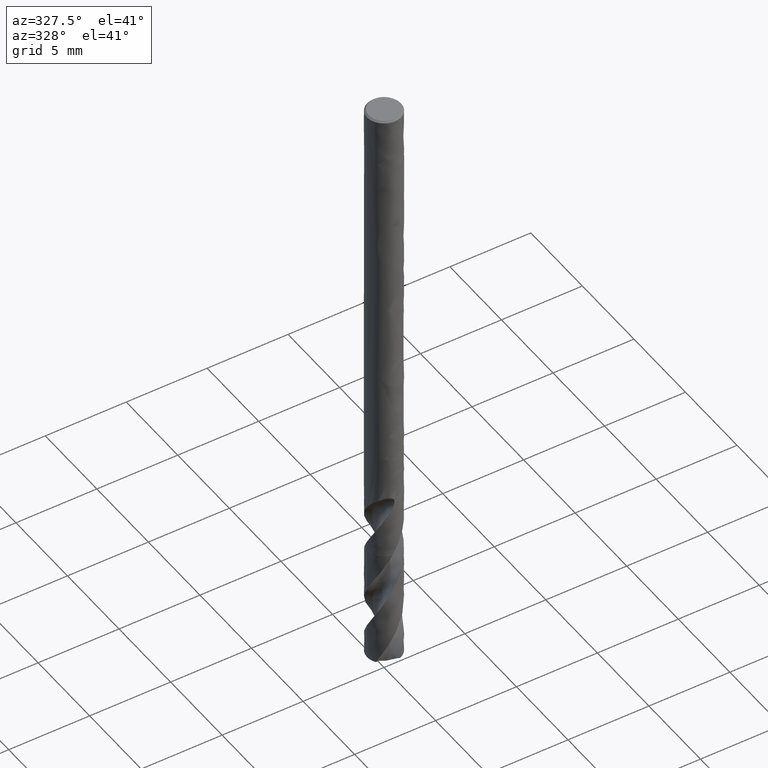
[diagram: clean part render]
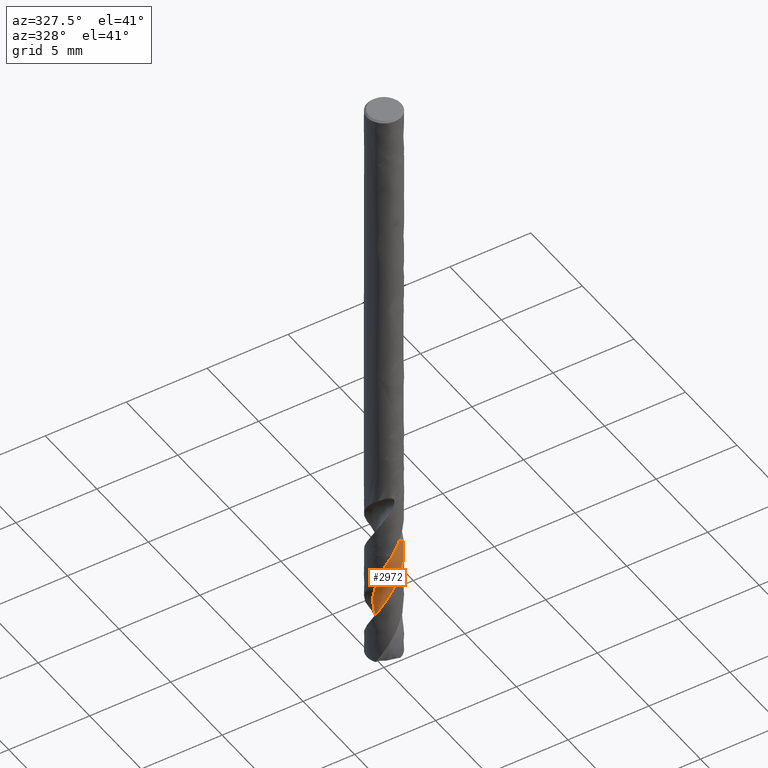
[diagram: same view with one face highlighted and labeled with its STEP entity id]
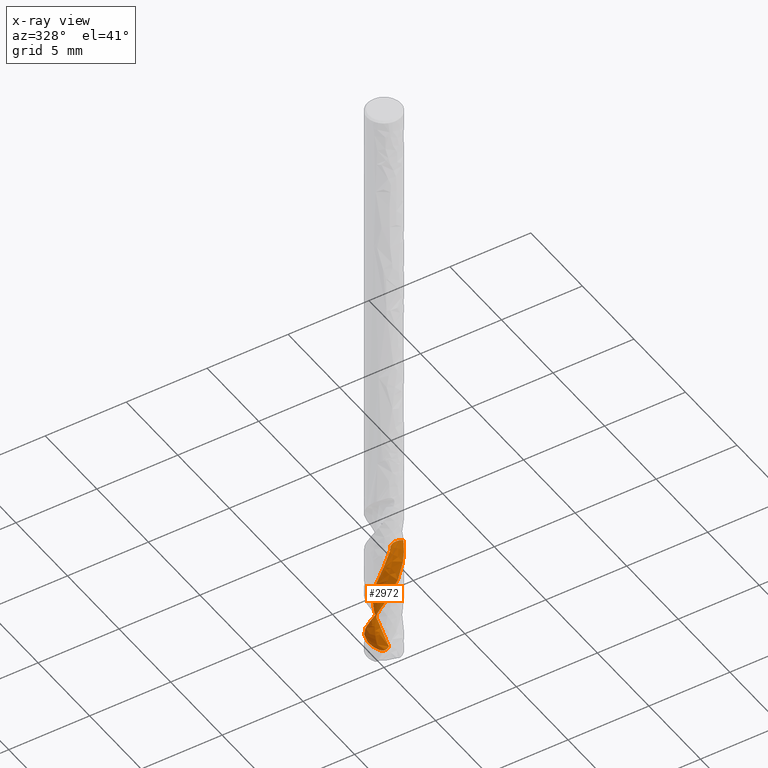
[diagram: x-ray of the same camera — body ghosted, the highlighted face saturated]
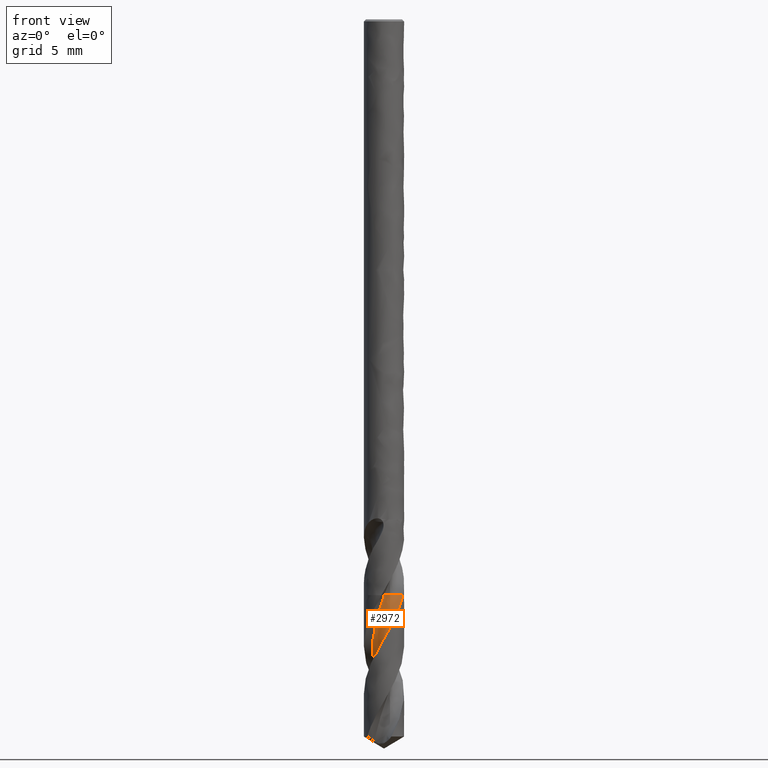
[diagram: same view with one face highlighted and labeled with its STEP entity id]
A machine part, auxiliary view. The second image highlights one B-rep face of the part: STEP entity #2972.
The next image is the same camera in x-ray: the body ghosted, the highlighted face saturated — about 0% of this face is hidden behind the body in this view.
A second angle (front view) of the same face is appended — the face is thin or edge-on in the first view.
In plain terms, the highlighted face is a freeform B-spline surface patch.
Its self-contained STEP definition (entity closure, byte-faithful):
#1627 = VERTEX_POINT('', #1628);
#1628 = CARTESIAN_POINT('', (0.00812829736750632, -0.62197046309725, -30.));
#1634 = EDGE_CURVE('', #1627, #1635, #1637, .T.);
#1635 = VERTEX_POINT('', #1636);
#1636 = CARTESIAN_POINT('', (0.989390204592491, -0.338738397540219, -30.));
#1637 = B_SPLINE_CURVE_WITH_KNOTS('', 3, (#1638, #1639, #1640, #1641, #1642, #1643, #1644, #1645, #1646, #1647, #1648, #1649, #1650, #1651, #1652, #1653, #1654, #1655, #1656, #1657, #1658, #1659, #1660, #1661, #1662, #1663, #1664, #1665, #1666, #1667, #1668, #1669, #1670, #1671, #1672, #1673, #1674, #1675, #1676, #1677, #1678, #1679, #1680, #1681, #1682, #1683), .UNSPECIFIED., .F., .U., (4, 3, 3, 3, 3, 3, 3, 3, 3, 3, 3, 3, 3, 3, 3, 4), (0., 0.0883401907301089, 0.176447770333646, 0.264331218393826, 0.351996399852826, 0.439446834063498, 0.52668385625376, 0.584820149875085, 0.610738380480792, 0.699044365433473, 0.787119138271106, 0.874970779840194, 0.962604802702614, 1.05002440330233, 1.13723060942003, 1.19592757691678), .UNSPECIFIED.);
#1638 = CARTESIAN_POINT('', (0.00812829736750601, -0.621970463097248, -30.));
#1639 = CARTESIAN_POINT('', (0.0176664654834315, -0.594111294570206, -30.));
#1640 = CARTESIAN_POINT('', (0.0292123244834765, -0.566861669460074, -30.));
#1641 = CARTESIAN_POINT('', (0.0425926385168949, -0.540630445348476, -30.));
#1642 = CARTESIAN_POINT('', (0.0559377204561162, -0.514468291436314, -30.));
#1643 = CARTESIAN_POINT('', (0.0711740399842842, -0.48918882880525, -30.));
#1644 = CARTESIAN_POINT('', (0.0880741868528203, -0.465169367006323, -30.));
#1645 = CARTESIAN_POINT('', (0.104931342459791, -0.441211006863665, -30.));
#1646 = CARTESIAN_POINT('', (0.123527374527527, -0.418387474144312, -30.));
#1647 = CARTESIAN_POINT('', (0.143586132381245, -0.397037697816471, -30.));
#1648 = CARTESIAN_POINT('', (0.163595072470671, -0.375740945615674, -30.));
#1649 = CARTESIAN_POINT('', (0.18515811865467, -0.355805578966728, -30.));
#1650 = CARTESIAN_POINT('', (0.207956642869816, -0.337526174397218, -30.));
#1651 = CARTESIAN_POINT('', (0.230699319138722, -0.319291547603412, -30.));
#1652 = CARTESIAN_POINT('', (0.254783003573362, -0.30261525714233, -30.));
#1653 = CARTESIAN_POINT('', (0.279853556688851, -0.287742520182874, -30.));
#1654 = CARTESIAN_POINT('', (0.304862928205397, -0.272906078307282, -30.));
#1655 = CARTESIAN_POINT('', (0.330976466204993, -0.259791901975455, -30.));
#1656 = CARTESIAN_POINT('', (0.357812048160874, -0.248591892499135, -30.));
#1657 = CARTESIAN_POINT('', (0.375695754331903, -0.241128008208622, -30.));
#1658 = CARTESIAN_POINT('', (0.393947655706699, -0.234491724544059, -30.));
#1659 = CARTESIAN_POINT('', (0.412448896149057, -0.228726256895383, -30.));
#1660 = CARTESIAN_POINT('', (0.420697089943454, -0.226155905213842, -30.));
#1661 = CARTESIAN_POINT('', (0.429000520278856, -0.22375653399112, -30.));
#1662 = CARTESIAN_POINT('', (0.437348426126049, -0.221531252749761, -30.));
#1663 = CARTESIAN_POINT('', (0.465790570165242, -0.213949498624474, -30.));
#1664 = CARTESIAN_POINT('', (0.494843464924716, -0.208373360789007, -30.));
#1665 = CARTESIAN_POINT('', (0.524071532533717, -0.204886439940146, -30.));
#1666 = CARTESIAN_POINT('', (0.553223072109718, -0.201408648918044, -30.));
#1667 = CARTESIAN_POINT('', (0.582693973668915, -0.199991782738159, -30.));
#1668 = CARTESIAN_POINT('', (0.612044694472524, -0.200656973201971, -30.));
#1669 = CARTESIAN_POINT('', (0.641321057280595, -0.201320478452331, -30.));
#1670 = CARTESIAN_POINT('', (0.670622840914181, -0.204058738032071, -30.));
#1671 = CARTESIAN_POINT('', (0.699515228256855, -0.208831118164447, -30.));
#1672 = CARTESIAN_POINT('', (0.72833604580466, -0.213591676557655, -30.));
#1673 = CARTESIAN_POINT('', (0.756891529550386, -0.2203997005449, -30.));
#1674 = CARTESIAN_POINT('', (0.784760025909286, -0.22915466205441, -30.));
#1675 = CARTESIAN_POINT('', (0.812560333842592, -0.237888201990477, -30.));
#1676 = CARTESIAN_POINT('', (0.839813357230459, -0.248601944941349, -30.));
#1677 = CARTESIAN_POINT('', (0.86611863442296, -0.261138460917775, -30.));
#1678 = CARTESIAN_POINT('', (0.89235969945981, -0.273644374794506, -30.));
#1679 = CARTESIAN_POINT('', (0.91778571903291, -0.288025159349682, -30.));
#1680 = CARTESIAN_POINT('', (0.942024893006842, -0.304070526943534, -30.));
#1681 = CARTESIAN_POINT('', (0.958339855785701, -0.314870382390272, -30.));
#1682 = CARTESIAN_POINT('', (0.974163304934627, -0.32645196539108, -30.));
#1683 = CARTESIAN_POINT('', (0.98939020459249, -0.338738397540218, -30.));
#2809 = EDGE_CURVE('', #2810, #1635, #2812, .T.);
#2810 = VERTEX_POINT('', #2811);
#2811 = CARTESIAN_POINT('', (-0.414746518956945, 0.964616672576782, -37.3041250124936));
#2812 = (
   BOUNDED_CURVE ()
   B_SPLINE_CURVE (3, (#2813, #2814, #2815, #2816, #2817, #2818, #2819, #2820, #2821, #2822, #2823, #2824, #2825, #2826, #2827, #2828, #2829, #2830, #2831, #2832, #2833, #2834, #2835, #2836, #2837, #2838, #2839, #2840, #2841, #2842, #2843, #2844, #2845, #2846, #2847, #2848, #2849, #2850, #2851, #2852, #2853, #2854), .UNSPECIFIED., .F., .U.)
   B_SPLINE_CURVE_WITH_KNOTS ((4, 1, 1, 1, 1, 1, 1, 1, 1, 1, 1, 1, 1, 1, 1, 1, 1, 1, 1, 1, 1, 1, 1, 1, 1, 1, 1, 1, 1, 1, 1, 1, 1, 1, 1, 1, 1, 1, 1, 4), (0.745874987506442, 0.77741935483871, 0.971774193548387, 1.16612903225806, 1.36048387096774, 1.55483870967742, 1.7491935483871, 1.94354838709677, 2.13790322580645, 2.33225806451613, 2.52661290322581, 2.72096774193548, 2.91532258064516, 3.10967741935484, 3.30403225806452, 3.49838709677419, 3.69274193548387, 3.88709677419355, 4.08145161290323, 4.2758064516129, 4.47016129032258, 4.66451612903226, 4.85887096774194, 5.05322580645161, 5.24758064516129, 5.44193548387097, 5.63629032258065, 5.83064516129032, 6.025, 6.21935483870968, 6.41370967741936, 6.60806451612903, 6.80241935483871, 6.99677419354839, 7.19112903225806, 7.38548387096774, 7.57983870967742, 7.7741935483871, 7.96854838709677, 8.05), .UNSPECIFIED.)
   CURVE ()
   GEOMETRIC_REPRESENTATION_ITEM ()
   RATIONAL_B_SPLINE_CURVE ((1., 1., 1., 1., 1., 1., 1., 1., 1., 1., 1., 1., 1., 1., 1., 1., 1., 1., 1., 1., 1., 1., 1., 1., 1., 1., 1., 1., 1., 1., 1., 1., 1., 1., 1., 1., 1., 1., 1., 1., 1., 1.))
   REPRESENTATION_ITEM ('')
);
#2813 = CARTESIAN_POINT('', (-0.41474651895696, 0.964616672576775, -37.3041250124936));
#2814 = CARTESIAN_POINT('', (-0.420215114117453, 0.962118653907865, -37.2936102233828));
#2815 = CARTESIAN_POINT('', (-0.459217766386062, 0.943900164336586, -37.2183104880355));
#2816 = CARTESIAN_POINT('', (-0.529574978386442, 0.905653830516715, -37.0782258064516));
#2817 = CARTESIAN_POINT('', (-0.620901534711613, 0.84282100320937, -36.8838709677419));
#2818 = CARTESIAN_POINT('', (-0.704980513974399, 0.770941911183176, -36.6895161290323));
#2819 = CARTESIAN_POINT('', (-0.780933186865598, 0.690832317498947, -36.4951612903226));
#2820 = CARTESIAN_POINT('', (-0.847970582937893, 0.603391429389029, -36.3008064516129));
#2821 = CARTESIAN_POINT('', (-0.905401230281192, 0.509592288943731, -36.1064516129032));
#2822 = CARTESIAN_POINT('', (-0.952637861196604, 0.410471398980585, -35.9120967741936));
#2823 = CARTESIAN_POINT('', (-0.989203044485623, 0.307117780833931, -35.7177419354839));
#2824 = CARTESIAN_POINT('', (-1.01473369007466, 0.200661548959801, -35.5233870967742));
#2825 = CARTESIAN_POINT('', (-1.02898438934024, 0.0922621222778734, -35.3290322580645));
#2826 = CARTESIAN_POINT('', (-1.03182956377424, -0.0169038134656448, -35.1346774193548));
#2827 = CARTESIAN_POINT('', (-1.02326440637361, -0.12565447410148, -34.9403225806452));
#2828 = CARTESIAN_POINT('', (-1.00340461132918, -0.23281515796574, -34.7459677419355));
#2829 = CARTESIAN_POINT('', (-0.972484898913985, -0.337230321372446, -34.5516129032258));
#2830 = CARTESIAN_POINT('', (-0.930856353630322, -0.437775432153699, -34.3572580645161));
#2831 = CARTESIAN_POINT('', (-0.878982604630458, -0.533368487261044, -34.1629032258065));
#2832 = CARTESIAN_POINT('', (-0.817434888076039, -0.622981083899905, -33.9685483870968));
#2833 = CARTESIAN_POINT('', (-0.746886041363156, -0.705648938102881, -33.7741935483871));
#2834 = CARTESIAN_POINT('', (-0.668103488930987, -0.780481750001658, -33.5798387096774));
#2835 = CARTESIAN_POINT('', (-0.581941288613748, -0.846672321282476, -33.3854838709677));
#2836 = CARTESIAN_POINT('', (-0.489331316114671, -0.903504837353683, -33.1911290322581));
#2837 = CARTESIAN_POINT('', (-0.391273673107693, -0.950362234556304, -32.9967741935484));
#2838 = CARTESIAN_POINT('', (-0.288826411643974, -0.986732581245565, -32.8024193548387));
#2839 = CARTESIAN_POINT('', (-0.18309467389795, -1.01221441069289, -32.608064516129));
#2840 = CARTESIAN_POINT('', (-0.075219351779246, -1.02652095343032, -32.4137096774194));
#2841 = CARTESIAN_POINT('', (0.0336346244834257, -1.02948322680406, -32.2193548387097));
#2842 = CARTESIAN_POINT('', (0.142290256052086, -1.02105195003878, -32.025));
#2843 = CARTESIAN_POINT('', (0.249570588103147, -1.00129826395557, -31.8306451612903));
#2844 = CARTESIAN_POINT('', (0.354310848353021, -0.970413245542474, -31.6362903225806));
#2845 = CARTESIAN_POINT('', (0.455370493853069, -0.928706218769424, -31.441935483871));
#2846 = CARTESIAN_POINT('', (0.551645048898602, -0.876601874235252, -31.2475806451613));
#2847 = CARTESIAN_POINT('', (0.642077618190537, -0.814636221496977, -31.0532258064516));
#2848 = CARTESIAN_POINT('', (0.72566996255584, -0.743451408585143, -30.8588709677419));
#2849 = CARTESIAN_POINT('', (0.801493025597867, -0.663789455334784, -30.6645161290323));
#2850 = CARTESIAN_POINT('', (0.86869681338132, -0.576484952553304, -30.4701612903226));
#2851 = CARTESIAN_POINT('', (0.926519500425906, -0.482456807895689, -30.2758064516129));
#2852 = CARTESIAN_POINT('', (0.965044486718553, -0.402015911788151, -30.1190860215054));
#2853 = CARTESIAN_POINT('', (0.984083598341404, -0.353260094962425, -30.0271505376344));
#2854 = CARTESIAN_POINT('', (0.989390204592491, -0.338738397540219, -30.));
#2972 = ADVANCED_FACE('', (#2973), #3119, .T.);
#2973 = FACE_OUTER_BOUND('', #2974, .T.);
#2974 = EDGE_LOOP('', (#2975, #2976, #3024, #3111, #3118));
#2975 = ORIENTED_EDGE('', *, *, #1634, .F.);
#2976 = ORIENTED_EDGE('', *, *, #2977, .F.);
#2977 = EDGE_CURVE('', #2978, #1627, #2980, .T.);
#2978 = VERTEX_POINT('', #2979);
#2979 = CARTESIAN_POINT('', (0.526142050315062, 0.34117120844056, -37.6232152339215));
#2980 = B_SPLINE_CURVE_WITH_KNOTS('', 3, (#2981, #2982, #2983, #2984, #2985, #2986, #2987, #2988, #2989, #2990, #2991, #2992, #2993, #2994, #2995, #2996, #2997, #2998, #2999, #3000, #3001, #3002, #3003, #3004, #3005, #3006, #3007, #3008, #3009, #3010, #3011, #3012, #3013, #3014, #3015, #3016, #3017, #3018, #3019, #3020, #3021, #3022, #3023), .UNSPECIFIED., .F., .U., (4, 1, 1, 1, 1, 1, 1, 1, 1, 1, 1, 1, 1, 1, 1, 1, 1, 1, 1, 1, 1, 1, 1, 1, 1, 1, 1, 1, 1, 1, 1, 1, 1, 1, 1, 1, 1, 1, 1, 1, 4), (0.426784766078523, 0.583064516129032, 0.77741935483871, 0.971774193548387, 1.16612903225806, 1.36048387096774, 1.55483870967742, 1.7491935483871, 1.94354838709677, 2.13790322580645, 2.33225806451613, 2.52661290322581, 2.72096774193548, 2.91532258064516, 3.10967741935484, 3.30403225806452, 3.49838709677419, 3.69274193548387, 3.88709677419355, 4.08145161290323, 4.2758064516129, 4.47016129032258, 4.66451612903226, 4.85887096774194, 5.05322580645161, 5.24758064516129, 5.44193548387097, 5.63629032258065, 5.83064516129032, 6.025, 6.21935483870968, 6.41370967741936, 6.60806451612903, 6.80241935483871, 6.99677419354839, 7.19112903225806, 7.38548387096774, 7.57983870967742, 7.7741935483871, 7.96854838709677, 8.05), .UNSPECIFIED.);
#2981 = CARTESIAN_POINT('', (0.526142050315062, 0.341171208440561, -37.6232152339215));
#2982 = CARTESIAN_POINT('', (0.516105033938284, 0.35585841269883, -37.5711219839046));
#2983 = CARTESIAN_POINT('', (0.492220866732757, 0.38782822670992, -37.4542437876512));
#2984 = CARTESIAN_POINT('', (0.45064864692343, 0.433713145349977, -37.2725806451613));
#2985 = CARTESIAN_POINT('', (0.401401515631753, 0.47778067963409, -37.0782258064516));
#2986 = CARTESIAN_POINT('', (0.347939388904613, 0.516372148714715, -36.8838709677419));
#2987 = CARTESIAN_POINT('', (0.290859367390927, 0.549094518377301, -36.6895161290323));
#2988 = CARTESIAN_POINT('', (0.230794159708197, 0.57561870692493, -36.4951612903226));
#2989 = CARTESIAN_POINT('', (0.168405265291884, 0.595682601360364, -36.3008064516129));
#2990 = CARTESIAN_POINT('', (0.104376043649314, 0.609093471026537, -36.1064516129032));
#2991 = CARTESIAN_POINT('', (0.039404561989231, 0.615729649071189, -35.9120967741936));
#2992 = CARTESIAN_POINT('', (-0.0258036606906008, 0.61554149902185, -35.7177419354839));
#2993 = CARTESIAN_POINT('', (-0.0905429546465419, 0.608551653044469, -35.5233870967742));
#2994 = CARTESIAN_POINT('', (-0.154114771059895, 0.594854525348498, -35.3290322580645));
#2995 = CARTESIAN_POINT('', (-0.215834854845357, 0.574615108268759, -35.1346774193548));
#2996 = CARTESIAN_POINT('', (-0.27504024925523, 0.548067065919296, -34.9403225806452));
#2997 = CARTESIAN_POINT('', (-0.331096065159513, 0.515510146588513, -34.7459677419355));
#2998 = CARTESIAN_POINT('', (-0.383401950293094, 0.477306941337256, -34.5516129032258));
#2999 = CARTESIAN_POINT('', (-0.431398196835692, 0.433879022211146, -34.3572580645161));
#3000 = CARTESIAN_POINT('', (-0.474571429265047, 0.385702499121754, -34.1629032258065));
#3001 = CARTESIAN_POINT('', (-0.512459818502224, 0.333303039721183, -33.9685483870968));
#3002 = CARTESIAN_POINT('', (-0.544657772904084, 0.277250401456298, -33.7741935483871));
#3003 = CARTESIAN_POINT('', (-0.570820061615212, 0.218152529402618, -33.5798387096774));
#3004 = CARTESIAN_POINT('', (-0.590665331127154, 0.156649277409762, -33.3854838709677));
#3005 = CARTESIAN_POINT('', (-0.603978981562124, 0.0934058135097222, -33.1911290322581));
#3006 = CARTESIAN_POINT('', (-0.610615375154459, 0.0291057734191477, -32.9967741935484));
#3007 = CARTESIAN_POINT('', (-0.610499355597011, -0.0355557717153742, -32.8024193548387));
#3008 = CARTESIAN_POINT('', (-0.603627063300917, -0.0998794654430609, -32.608064516129));
#3009 = CARTESIAN_POINT('', (-0.590066038133553, -0.163168864978001, -32.4137096774193));
#3010 = CARTESIAN_POINT('', (-0.569954607798243, -0.224737619447328, -32.2193548387097));
#3011 = CARTESIAN_POINT('', (-0.543500566646285, -0.283916557928922, -32.025));
#3012 = CARTESIAN_POINT('', (-0.51097915631376, -0.340060618475316, -31.8306451612903));
#3013 = CARTESIAN_POINT('', (-0.472730366095309, -0.392555550617503, -31.6362903225806));
#3014 = CARTESIAN_POINT('', (-0.429155577361057, -0.440824325733241, -31.441935483871));
#3015 = CARTESIAN_POINT('', (-0.380713582498908, -0.484333192170941, -31.2475806451613));
#3016 = CARTESIAN_POINT('', (-0.32791601491458, -0.522597314997594, -31.0532258064516));
#3017 = CARTESIAN_POINT('', (-0.271322231955988, -0.555185944144193, -30.8588709677419));
#3018 = CARTESIAN_POINT('', (-0.211533699208055, -0.581727057743863, -30.6645161290323));
#3019 = CARTESIAN_POINT('', (-0.149187924877569, -0.601911436229342, -30.4701612903226));
#3020 = CARTESIAN_POINT('', (-0.0849520149141438, -0.615496112376348, -30.2758064516129));
#3021 = CARTESIAN_POINT('', (-0.0321867601877411, -0.62098832180407, -30.1190860215054));
#3022 = CARTESIAN_POINT('', (-0.00106758548481457, -0.621902222022233, -30.0271505376344));
#3023 = CARTESIAN_POINT('', (0.00812829736750632, -0.62197046309725, -30.));
#3024 = ORIENTED_EDGE('', *, *, #3025, .T.);
#3025 = EDGE_CURVE('', #2978, #3026, #3028, .T.);
#3026 = VERTEX_POINT('', #3027);
#3027 = CARTESIAN_POINT('', (-0.380658873556618, 0.978569783910484, -37.3690963500211));
#3028 = B_SPLINE_CURVE_WITH_KNOTS('', 3, (#3029, #3030, #3031, #3032, #3033, #3034, #3035, #3036, #3037, #3038, #3039, #3040, #3041, #3042, #3043, #3044, #3045, #3046, #3047, #3048, #3049, #3050, #3051, #3052, #3053, #3054, #3055, #3056, #3057, #3058, #3059, #3060, #3061, #3062, #3063, #3064, #3065, #3066, #3067, #3068, #3069, #3070, #3071, #3072, #3073, #3074, #3075, #3076, #3077, #3078, #3079, #3080, #3081, #3082, #3083, #3084, #3085, #3086, #3087, #3088, #3089, #3090, #3091, #3092, #3093, #3094, #3095, #3096, #3097, #3098, #3099, #3100, #3101, #3102, #3103, #3104, #3105, #3106, #3107, #3108, #3109, #3110), .UNSPECIFIED., .F., .U., (4, 3, 3, 3, 3, 3, 3, 3, 3, 3, 3, 3, 3, 3, 3, 3, 3, 3, 3, 3, 3, 3, 3, 3, 3, 3, 3, 4), (0., 0.0584200043990706, 0.116781054589472, 0.175027823026521, 0.2138033855006, 0.252516026943997, 0.291170928282461, 0.329791560745905, 0.368418101904684, 0.407092936271379, 0.445840872019871, 0.484660773334096, 0.52353348383714, 0.562435050360689, 0.601345207776891, 0.618657088241367, 0.636006007363751, 0.695207347077198, 0.754146322578821, 0.812888178564507, 0.871479250392525, 0.929951423746157, 0.98832638665493, 1.0466187415727, 1.13380968116754, 1.22078361959114, 1.30755334033018, 1.33799535496574), .UNSPECIFIED.);
#3029 = CARTESIAN_POINT('', (0.526142050315062, 0.341171208440561, -37.6232152339215));
#3030 = CARTESIAN_POINT('', (0.51087307926239, 0.334301413507831, -37.6331588353212));
#3031 = CARTESIAN_POINT('', (0.495093548102803, 0.328382703502582, -37.6430425673347));
#3032 = CARTESIAN_POINT('', (0.478911309171094, 0.323535212777621, -37.6527300719179));
#3033 = CARTESIAN_POINT('', (0.462745400451965, 0.318692613869816, -37.662407800412));
#3034 = CARTESIAN_POINT('', (0.446119601572104, 0.314902655981584, -37.6719253372805));
#3035 = CARTESIAN_POINT('', (0.429162279095745, 0.312279761711153, -37.6810913308318));
#3036 = CARTESIAN_POINT('', (0.412238162199794, 0.30966200355385, -37.6902393756688));
#3037 = CARTESIAN_POINT('', (0.394911217867676, 0.308197527528548, -37.699076872948));
#3038 = CARTESIAN_POINT('', (0.377341857025813, 0.307981549202978, -37.707337383089));
#3039 = CARTESIAN_POINT('', (0.365645725768513, 0.30783776987786, -37.7128365023643));
#3040 = CARTESIAN_POINT('', (0.353810186951692, 0.308246089783431, -37.7180936854078));
#3041 = CARTESIAN_POINT('', (0.341896179772469, 0.309222916844781, -37.7230092437191));
#3042 = CARTESIAN_POINT('', (0.330001505429791, 0.310198158810737, -37.7279168255635));
#3043 = CARTESIAN_POINT('', (0.317996696079642, 0.311743407683622, -37.7324962449879));
#3044 = CARTESIAN_POINT('', (0.305958642164865, 0.313856657938524, -37.7366360717324));
#3045 = CARTESIAN_POINT('', (0.293938543069761, 0.315966756269741, -37.7407697239039));
#3046 = CARTESIAN_POINT('', (0.281848344763279, 0.318650423507471, -37.7444763222319));
#3047 = CARTESIAN_POINT('', (0.269783619270303, 0.321877004839789, -37.7476471185331));
#3048 = CARTESIAN_POINT('', (0.25772958956378, 0.325100725698827, -37.7508151038163));
#3049 = CARTESIAN_POINT('', (0.245660124115528, 0.328877743919432, -37.7534571829927));
#3050 = CARTESIAN_POINT('', (0.23368486114121, 0.333141733805272, -37.7554917851766));
#3051 = CARTESIAN_POINT('', (0.221707766032721, 0.3374063760527, -37.7575266986409));
#3052 = CARTESIAN_POINT('', (0.20978286784616, 0.342172727158666, -37.7589600072923));
#3053 = CARTESIAN_POINT('', (0.198018474664818, 0.347343302925342, -37.7597619130594));
#3054 = CARTESIAN_POINT('', (0.186239372936739, 0.352520343254545, -37.760564821417));
#3055 = CARTESIAN_POINT('', (0.174581632927973, 0.358118863306336, -37.7607379648251));
#3056 = CARTESIAN_POINT('', (0.163132321927408, 0.364028560025072, -37.7603108720645));
#3057 = CARTESIAN_POINT('', (0.151661369969139, 0.369949426979007, -37.759882972033));
#3058 = CARTESIAN_POINT('', (0.140365940219261, 0.376198748135999, -37.7588531192033));
#3059 = CARTESIAN_POINT('', (0.12930039963856, 0.382675433961072, -37.7572946407363));
#3060 = CARTESIAN_POINT('', (0.118214307307873, 0.389164148771702, -37.7557332677464));
#3061 = CARTESIAN_POINT('', (0.107333010358421, 0.395895370840207, -37.7536396020892));
#3062 = CARTESIAN_POINT('', (0.0966804604428747, 0.402790411521264, -37.7511049733245));
#3063 = CARTESIAN_POINT('', (0.0860134191839491, 0.409694831966125, -37.7485668965424));
#3064 = CARTESIAN_POINT('', (0.0755574283614539, 0.416774990019351, -37.7455836202527));
#3065 = CARTESIAN_POINT('', (0.0653160211301322, 0.423976329669393, -37.7422440229989));
#3066 = CARTESIAN_POINT('', (0.0550670114894789, 0.43118301502345, -37.7389019466927));
#3067 = CARTESIAN_POINT('', (0.0450206814137741, 0.438519602510636, -37.7351996590196));
#3068 = CARTESIAN_POINT('', (0.0351701536661167, 0.445951034603706, -37.7312135698859));
#3069 = CARTESIAN_POINT('', (0.0253174505606521, 0.453384107829539, -37.7272266004776));
#3070 = CARTESIAN_POINT('', (0.0156526529992836, 0.460918179452456, -37.7229526440412));
#3071 = CARTESIAN_POINT('', (0.00616522546124778, 0.468531792945999, -37.7184533252695));
#3072 = CARTESIAN_POINT('', (0.00194408572909474, 0.471919236622803, -37.7164514914575));
#3073 = CARTESIAN_POINT('', (-0.00224274427454493, 0.475323188113452, -37.7144044992362));
#3074 = CARTESIAN_POINT('', (-0.0063962176909137, 0.478742356963327, -37.7123168984917));
#3075 = CARTESIAN_POINT('', (-0.0105585774371823, 0.482168841103162, -37.7102248313387));
#3076 = CARTESIAN_POINT('', (-0.014687816457173, 0.485610921634738, -37.7080917897959));
#3077 = CARTESIAN_POINT('', (-0.018784857315535, 0.48906757725724, -37.7059218669164));
#3078 = CARTESIAN_POINT('', (-0.0327655731148741, 0.500863046608187, -37.6985172360784));
#3079 = CARTESIAN_POINT('', (-0.0463794836340015, 0.512832918374861, -37.6906829028149));
#3080 = CARTESIAN_POINT('', (-0.0596572837573969, 0.524953554146325, -37.6825458098636));
#3081 = CARTESIAN_POINT('', (-0.0728762402873703, 0.537020474561576, -37.6744447782919));
#3082 = CARTESIAN_POINT('', (-0.0857700628271908, 0.549244805422224, -37.6660376918205));
#3083 = CARTESIAN_POINT('', (-0.0983578895519472, 0.561617672606233, -37.6574100114503));
#3084 = CARTESIAN_POINT('', (-0.110903616693371, 0.573949159132208, -37.6488111860808));
#3085 = CARTESIAN_POINT('', (-0.123150755031291, 0.58643388904486, -37.639988763494));
#3086 = CARTESIAN_POINT('', (-0.135107925059268, 0.59906962185625, -37.6310018302894));
#3087 = CARTESIAN_POINT('', (-0.147034402291103, 0.611672920072299, -37.6220379655959));
#3088 = CARTESIAN_POINT('', (-0.158676524486895, 0.624431071004841, -37.6129067885233));
#3089 = CARTESIAN_POINT('', (-0.170034166775733, 0.63734469889286, -37.6036505996889));
#3090 = CARTESIAN_POINT('', (-0.181368761076223, 0.650232121241251, -37.5944131943773));
#3091 = CARTESIAN_POINT('', (-0.192423576250872, 0.663278587833131, -37.5850480334057));
#3092 = CARTESIAN_POINT('', (-0.203191163818534, 0.676485765277622, -37.575586645476));
#3093 = CARTESIAN_POINT('', (-0.213940850187772, 0.689670985686465, -37.5661409871777));
#3094 = CARTESIAN_POINT('', (-0.224407566560384, 0.703020538546061, -37.5565962826569));
#3095 = CARTESIAN_POINT('', (-0.234577455836257, 0.716536147528748, -37.5469771391972));
#3096 = CARTESIAN_POINT('', (-0.244732953426379, 0.730032630207115, -37.5373716080479));
#3097 = CARTESIAN_POINT('', (-0.254595708942505, 0.743699078871785, -37.527688623838));
#3098 = CARTESIAN_POINT('', (-0.264145923521538, 0.757536618276902, -37.5179484334211));
#3099 = CARTESIAN_POINT('', (-0.278430681508293, 0.778234153384463, -37.5033795185869));
#3100 = CARTESIAN_POINT('', (-0.292026843050024, 0.799328670610802, -37.4886731012147));
#3101 = CARTESIAN_POINT('', (-0.304843255092871, 0.820818615760977, -37.4738873854895));
#3102 = CARTESIAN_POINT('', (-0.317627769596392, 0.842255076646739, -37.4591384685149));
#3103 = CARTESIAN_POINT('', (-0.329648270484814, 0.864105141396813, -37.4442965390534));
#3104 = CARTESIAN_POINT('', (-0.340782832021159, 0.886356030034352, -37.4294164949488));
#3105 = CARTESIAN_POINT('', (-0.351891249238679, 0.908554672849298, -37.4145713896799));
#3106 = CARTESIAN_POINT('', (-0.36213065891031, 0.931178135594462, -37.3996709941363));
#3107 = CARTESIAN_POINT('', (-0.371344890004599, 0.954194633504042, -37.3847749344));
#3108 = CARTESIAN_POINT('', (-0.374577581725152, 0.962269668899511, -37.379548847873));
#3109 = CARTESIAN_POINT('', (-0.377684867534428, 0.970395454286952, -37.37432168218));
#3110 = CARTESIAN_POINT('', (-0.380658873556618, 0.978569783910484, -37.3690963500211));
#3111 = ORIENTED_EDGE('', *, *, #3112, .F.);
#3112 = EDGE_CURVE('', #2810, #3026, #3113, .T.);
#3113 = CIRCLE('', #3114, 4.31697492285893);
#3114 = AXIS2_PLACEMENT_3D('', #3115, #3116, #3117);
#3115 = CARTESIAN_POINT('', (1.23375176345764, -3.02505896890957, -37.338969957472));
#3116 = DIRECTION('', (-0.805512264065602, -0.328523171478852, -0.493175950591049));
#3117 = DIRECTION('', (-0.381864224834537, 0.924183186861382, 0.0080716116270861));
#3118 = ORIENTED_EDGE('', *, *, #2809, .T.);
#3119 = (
   BOUNDED_SURFACE ()
   B_SPLINE_SURFACE (3, 2, ((#3120, #3121, #3122, #3123, #3124), (#3125, #3126, #3127, #3128, #3129), (#3130, #3131, #3132, #3133, #3134), (#3135, #3136, #3137, #3138, #3139), (#3140, #3141, #3142, #3143, #3144), (#3145, #3146, #3147, #3148, #3149), (#3150, #3151, #3152, #3153, #3154), (#3155, #3156, #3157, #3158, #3159), (#3160, #3161, #3162, #3163, #3164), (#3165, #3166, #3167, #3168, #3169), (#3170, #3171, #3172, #3173, #3174), (#3175, #3176, #3177, #3178, #3179), (#3180, #3181, #3182, #3183, #3184), (#3185, #3186, #3187, #3188, #3189), (#3190, #3191, #3192, #3193, #3194), (#3195, #3196, #3197, #3198, #3199), (#3200, #3201, #3202, #3203, #3204), (#3205, #3206, #3207, #3208, #3209), (#3210, #3211, #3212, #3213, #3214), (#3215, #3216, #3217, #3218, #3219), (#3220, #3221, #3222, #3223, #3224), (#3225, #3226, #3227, #3228, #3229), (#3230, #3231, #3232, #3233, #3234), (#3235, #3236, #3237, #3238, #3239), (#3240, #3241, #3242, #3243, #3244), (#3245, #3246, #3247, #3248, #3249), (#3250, #3251, #3252, #3253, #3254), (#3255, #3256, #3257, #3258, #3259), (#3260, #3261, #3262, #3263, #3264), (#3265, #3266, #3267, #3268, #3269), (#3270, #3271, #3272, #3273, #3274), (#3275, #3276, #3277, #3278, #3279), (#3280, #3281, #3282, #3283, #3284), (#3285, #3286, #3287, #3288, #3289), (#3290, #3291, #3292, #3293, #3294), (#3295, #3296, #3297, #3298, #3299), (#3300, #3301, #3302, #3303, #3304), (#3305, #3306, #3307, #3308, #3309), (#3310, #3311, #3312, #3313, #3314), (#3315, #3316, #3317, #3318, #3319), (#3320, #3321, #3322, #3323, #3324), (#3325, #3326, #3327, #3328, #3329), (#3330, #3331, #3332, #3333, #3334), (#3335, #3336, #3337, #3338, #3339)), .UNSPECIFIED., .F., .F., .U.)
   B_SPLINE_SURFACE_WITH_KNOTS ((4, 1, 1, 1, 1, 1, 1, 1, 1, 1, 1, 1, 1, 1, 1, 1, 1, 1, 1, 1, 1, 1, 1, 1, 1, 1, 1, 1, 1, 1, 1, 1, 1, 1, 1, 1, 1, 1, 1, 1, 1, 4), (3, 2, 3), (0.289262035174857, 0.388709677419355, 0.583064516129032, 0.77741935483871, 0.971774193548387, 1.16612903225806, 1.36048387096774, 1.55483870967742, 1.7491935483871, 1.94354838709677, 2.13790322580645, 2.33225806451613, 2.52661290322581, 2.72096774193548, 2.91532258064516, 3.10967741935484, 3.30403225806452, 3.49838709677419, 3.69274193548387, 3.88709677419355, 4.08145161290323, 4.2758064516129, 4.47016129032258, 4.66451612903226, 4.85887096774194, 5.05322580645161, 5.24758064516129, 5.44193548387097, 5.63629032258065, 5.83064516129032, 6.025, 6.21935483870968, 6.41370967741936, 6.60806451612903, 6.80241935483871, 6.99677419354839, 7.19112903225806, 7.38548387096774, 7.57983870967742, 7.7741935483871, 7.96854838709677, 8.05000000000022), (0., 0.5, 1.), .UNSPECIFIED.)
   GEOMETRIC_REPRESENTATION_ITEM ()
   RATIONAL_B_SPLINE_SURFACE (((1., 0.887010833178222, 1., 0.887010833178222, 1.), (1., 0.887010833178222, 1., 0.887010833178222, 1.), (1., 0.887010833178222, 1., 0.887010833178222, 1.), (1., 0.887010833178222, 1., 0.887010833178222, 1.), (1., 0.887010833178222, 1., 0.887010833178222, 1.), (1., 0.887010833178222, 1., 0.887010833178222, 1.), (1., 0.887010833178222, 1., 0.887010833178222, 1.), (1., 0.887010833178221, 1., 0.887010833178221, 1.), (1., 0.887010833178222, 1., 0.887010833178222, 1.), (1., 0.887010833178221, 1., 0.887010833178221, 1.), (1., 0.887010833178222, 1., 0.887010833178222, 1.), (1., 0.887010833178222, 1., 0.887010833178222, 1.), (1., 0.887010833178222, 1., 0.887010833178222, 1.), (1., 0.887010833178222, 1., 0.887010833178222, 1.), (1., 0.887010833178222, 1., 0.887010833178222, 1.), (1., 0.887010833178222, 1., 0.887010833178222, 1.), (1., 0.887010833178222, 1., 0.887010833178222, 1.), (1., 0.887010833178222, 1., 0.887010833178222, 1.), (1., 0.887010833178222, 1., 0.887010833178222, 1.), (1., 0.887010833178222, 1., 0.887010833178222, 1.), (1., 0.887010833178222, 1., 0.887010833178222, 1.), (1., 0.887010833178222, 1., 0.887010833178222, 1.), (1., 0.887010833178222, 1., 0.887010833178222, 1.), (1., 0.887010833178221, 1., 0.887010833178221, 1.), (1., 0.887010833178222, 1., 0.887010833178222, 1.), (1., 0.887010833178221, 1., 0.887010833178221, 1.), (1., 0.887010833178222, 1., 0.887010833178222, 1.), (1., 0.887010833178221, 1., 0.887010833178221, 1.), (1., 0.887010833178222, 1., 0.887010833178222, 1.), (1., 0.887010833178221, 1., 0.887010833178221, 1.), (1., 0.887010833178222, 1., 0.887010833178222, 1.), (1., 0.887010833178221, 1., 0.887010833178221, 1.), (1., 0.887010833178222, 1., 0.887010833178222, 1.), (1., 0.887010833178222, 1., 0.887010833178222, 1.), (1., 0.887010833178222, 1., 0.887010833178222, 1.), (1., 0.887010833178222, 1., 0.887010833178222, 1.), (1., 0.887010833178222, 1., 0.887010833178222, 1.), (1., 0.887010833178221, 1., 0.887010833178221, 1.), (1., 0.887010833178222, 1., 0.887010833178222, 1.), (1., 0.887010833178221, 1., 0.887010833178221, 1.), (1., 0.887010833178222, 1., 0.887010833178222, 1.), (1., 0.887010833178222, 1., 0.887010833178222, 1.), (1., 0.887010833178222, 1., 0.887010833178222, 1.), (1., 0.887010833178222, 1., 0.887010833178222, 1.)))
   REPRESENTATION_ITEM ('')
   SURFACE ()
);
#3120 = CARTESIAN_POINT('', (-0.165642467570819, 1.04313567848122, -37.7607379648251));
#3121 = CARTESIAN_POINT('', (-0.228053845852779, 0.721372673499715, -37.7607379648251));
#3122 = CARTESIAN_POINT('', (-0.000278718488335231, 0.48569258764626, -37.7607379648251));
#3123 = CARTESIAN_POINT('', (0.227496408876108, 0.250012501792805, -37.7607379648251));
#3124 = CARTESIAN_POINT('', (0.551200678844274, 0.301414419248841, -37.7607379648251));
#3125 = CARTESIAN_POINT('', (-0.184393222027378, 1.03967643838238, -37.7275887507436));
#3126 = CARTESIAN_POINT('', (-0.240969658682577, 0.71693204709552, -37.7275887507436));
#3127 = CARTESIAN_POINT('', (-0.00904384169526613, 0.48546876554422, -37.7275887507436));
#3128 = CARTESIAN_POINT('', (0.222881975292045, 0.254005483992919, -37.7275887507436));
#3129 = CARTESIAN_POINT('', (0.545512779158018, 0.311226106923156, -37.7275887507436));
#3130 = CARTESIAN_POINT('', (-0.239478084691768, 1.02798080858515, -37.6296545904256));
#3131 = CARTESIAN_POINT('', (-0.278750238609997, 0.70280046830607, -37.6296545904256));
#3132 = CARTESIAN_POINT('', (-0.0349036802000436, 0.484114822391624, -37.6296545904256));
#3133 = CARTESIAN_POINT('', (0.20894287820991, 0.265429176477178, -37.6296545904256));
#3134 = CARTESIAN_POINT('', (0.527944312106635, 0.339743649826792, -37.6296545904256));
#3135 = CARTESIAN_POINT('', (-0.32908997941391, 1.00138749861648, -37.466935483871));
#3136 = CARTESIAN_POINT('', (-0.339408462893963, 0.674450899792564, -37.466935483871));
#3137 = CARTESIAN_POINT('', (-0.0775161185974974, 0.478475363689763, -37.466935483871));
#3138 = CARTESIAN_POINT('', (0.184376225698968, 0.282499827586961, -37.466935483871));
#3139 = CARTESIAN_POINT('', (0.495125264277398, 0.384622527191216, -37.466935483871));
#3140 = CARTESIAN_POINT('', (-0.431960703679259, 0.958717163043525, -37.2725806451613));
#3141 = CARTESIAN_POINT('', (-0.407752851459552, 0.633305202195838, -37.2725806451613));
#3142 = CARTESIAN_POINT('', (-0.127305924887188, 0.466486480980434, -37.2725806451613));
#3143 = CARTESIAN_POINT('', (0.153141001685176, 0.29966775976503, -37.2725806451613));
#3144 = CARTESIAN_POINT('', (0.45064864692343, 0.433713145349977, -37.2725806451613));
#3145 = CARTESIAN_POINT('', (-0.529574978386442, 0.905653830516715, -37.0782258064516));
#3146 = CARTESIAN_POINT('', (-0.471270529589162, 0.58535504106259, -37.0782258064516));
#3147 = CARTESIAN_POINT('', (-0.17545506345997, 0.449399411263374, -37.0782258064516));
#3148 = CARTESIAN_POINT('', (0.120360402669222, 0.313443781464158, -37.0782258064516));
#3149 = CARTESIAN_POINT('', (0.401401515631753, 0.477780679634089, -37.0782258064516));
#3150 = CARTESIAN_POINT('', (-0.620901534711613, 0.84282100320937, -36.8838709677419));
#3151 = CARTESIAN_POINT('', (-0.529297126058839, 0.531151556742084, -36.8838709677419));
#3152 = CARTESIAN_POINT('', (-0.221450331573639, 0.427423244931678, -36.8838709677419));
#3153 = CARTESIAN_POINT('', (0.0863964629115602, 0.323694933121273, -36.8838709677419));
#3154 = CARTESIAN_POINT('', (0.347939388904613, 0.516372148714715, -36.8838709677419));
#3155 = CARTESIAN_POINT('', (-0.704980513974399, 0.770941911183176, -36.6895161290323));
#3156 = CARTESIAN_POINT('', (-0.581229440942389, 0.471308957295352, -36.6895161290323));
#3157 = CARTESIAN_POINT('', (-0.264803794764511, 0.400817499848164, -36.6895161290323));
#3158 = CARTESIAN_POINT('', (0.0516218514133681, 0.330326042400976, -36.6895161290323));
#3159 = CARTESIAN_POINT('', (0.290859367390927, 0.549094518377301, -36.6895161290323));
#3160 = CARTESIAN_POINT('', (-0.780933186865598, 0.690832317498947, -36.4951612903226));
#3161 = CARTESIAN_POINT('', (-0.626531567042832, 0.406498390112418, -36.4951612903226));
#3162 = CARTESIAN_POINT('', (-0.305057718298668, 0.369889551827706, -36.4951612903226));
#3163 = CARTESIAN_POINT('', (0.0164161304454968, 0.333280713542994, -36.4951612903226));
#3164 = CARTESIAN_POINT('', (0.230794159708197, 0.57561870692493, -36.4951612903226));
#3165 = CARTESIAN_POINT('', (-0.847970582937893, 0.603391429389029, -36.3008064516129));
#3166 = CARTESIAN_POINT('', (-0.664740038345044, 0.337440587530533, -36.3008064516129));
#3167 = CARTESIAN_POINT('', (-0.341789139758051, 0.334991126592194, -36.3008064516129));
#3168 = CARTESIAN_POINT('', (-0.018838241171058, 0.332541665653855, -36.3008064516129));
#3169 = CARTESIAN_POINT('', (0.168405265291884, 0.595682601360364, -36.3008064516129));
#3170 = CARTESIAN_POINT('', (-0.905401230281192, 0.509592288943731, -36.1064516129032));
#3171 = CARTESIAN_POINT('', (-0.695468292884866, 0.26489823818293, -36.1064516129032));
#3172 = CARTESIAN_POINT('', (-0.37461407487431, 0.296514491383041, -36.1064516129032));
#3173 = CARTESIAN_POINT('', (-0.0537598568637537, 0.328130744583152, -36.1064516129032));
#3174 = CARTESIAN_POINT('', (0.104376043649314, 0.609093471026536, -36.1064516129032));
#3175 = CARTESIAN_POINT('', (-0.952637861196604, 0.410471398980585, -35.9120967741936));
#3176 = CARTESIAN_POINT('', (-0.718410321961759, 0.189667926298043, -35.9120967741936));
#3177 = CARTESIAN_POINT('', (-0.403191308678148, 0.254888224895858, -35.9120967741936));
#3178 = CARTESIAN_POINT('', (-0.0879722953945366, 0.320108523493674, -35.9120967741936));
#3179 = CARTESIAN_POINT('', (0.0394045619892312, 0.615729649071189, -35.9120967741936));
#3180 = CARTESIAN_POINT('', (-0.989203044485623, 0.307117780833931, -35.7177419354839));
#3181 = CARTESIAN_POINT('', (-0.733343498676704, 0.112571782497218, -35.7177419354839));
#3182 = CARTESIAN_POINT('', (-0.427225739939467, 0.210572652065118, -35.7177419354839));
#3183 = CARTESIAN_POINT('', (-0.12110798120223, 0.308573521633018, -35.7177419354839));
#3184 = CARTESIAN_POINT('', (-0.0258036606906006, 0.61554149902185, -35.7177419354839));
#3185 = CARTESIAN_POINT('', (-1.01473369007466, 0.200661548959801, -35.5233870967742));
#3186 = CARTESIAN_POINT('', (-0.740130556354082, 0.0344489119911912, -35.5233870967742));
#3187 = CARTESIAN_POINT('', (-0.446471248144302, 0.164054978357602, -35.5233870967742));
#3188 = CARTESIAN_POINT('', (-0.152811939934521, 0.293661044724013, -35.5233870967742));
#3189 = CARTESIAN_POINT('', (-0.0905429546465417, 0.608551653044469, -35.5233870967742));
#3190 = CARTESIAN_POINT('', (-1.02898438934024, 0.0922621222778734, -35.3290322580645));
#3191 = CARTESIAN_POINT('', (-0.738720703623525, -0.043853310984357, -35.3290322580645));
#3192 = CARTESIAN_POINT('', (-0.460733057751973, 0.11584417541042, -35.3290322580645));
#3193 = CARTESIAN_POINT('', (-0.182745411880421, 0.275541661805196, -35.3290322580645));
#3194 = CARTESIAN_POINT('', (-0.154114771059895, 0.594854525348498, -35.3290322580645));
#3195 = CARTESIAN_POINT('', (-1.03182956377424, -0.0169038134656448, -35.1346774193548));
#3196 = CARTESIAN_POINT('', (-0.729149868909201, -0.121487998631987, -35.1346774193548));
#3197 = CARTESIAN_POINT('', (-0.469869579093384, 0.066465667955088, -35.1346774193548));
#3198 = CARTESIAN_POINT('', (-0.210589289277566, 0.254419334542163, -35.1346774193548));
#3199 = CARTESIAN_POINT('', (-0.215834854845357, 0.574615108268759, -35.1346774193548));
#3200 = CARTESIAN_POINT('', (-1.02326440637361, -0.12565447410148, -34.9403225806452));
#3201 = CARTESIAN_POINT('', (-0.711540075810996, -0.197617469555662, -34.9403225806452));
#3202 = CARTESIAN_POINT('', (-0.473793710323523, 0.0164558745975662, -34.9403225806452));
#3203 = CARTESIAN_POINT('', (-0.23604734483605, 0.230529218750794, -34.9403225806452));
#3204 = CARTESIAN_POINT('', (-0.27504024925523, 0.548067065919296, -34.9403225806452));
#3205 = CARTESIAN_POINT('', (-1.00340461132918, -0.23281515796574, -34.7459677419355));
#3206 = CARTESIAN_POINT('', (-0.686097958792228, -0.271421848992472, -34.7459677419355));
#3207 = CARTESIAN_POINT('', (-0.472473589921823, -0.0336433441587509, -34.7459677419355));
#3208 = CARTESIAN_POINT('', (-0.258849221051419, 0.20413516067497, -34.7459677419355));
#3209 = CARTESIAN_POINT('', (-0.331096065159513, 0.515510146588513, -34.7459677419355));
#3210 = CARTESIAN_POINT('', (-0.972484898913985, -0.337230321372446, -34.5516129032258));
#3211 = CARTESIAN_POINT('', (-0.653112436584127, -0.342107466468116, -34.5516129032258));
#3212 = CARTESIAN_POINT('', (-0.465932794396898, -0.0832902765645465, -34.5516129032258));
#3213 = CARTESIAN_POINT('', (-0.278753152209668, 0.175526913339023, -34.5516129032258));
#3214 = CARTESIAN_POINT('', (-0.383401950293094, 0.477306941337256, -34.5516129032258));
#3215 = CARTESIAN_POINT('', (-0.930856353630322, -0.437775432153699, -34.3572580645161));
#3216 = CARTESIAN_POINT('', (-0.612951568462296, -0.408914970281382, -34.3572580645161));
#3217 = CARTESIAN_POINT('', (-0.454249981028508, -0.131948934749573, -34.3572580645161));
#3218 = CARTESIAN_POINT('', (-0.295548393594719, 0.145017100782237, -34.3572580645161));
#3219 = CARTESIAN_POINT('', (-0.431398196835692, 0.433879022211146, -34.3572580645161));
#3220 = CARTESIAN_POINT('', (-0.878982604630458, -0.533368487261044, -34.1629032258065));
#3221 = CARTESIAN_POINT('', (-0.566058626049382, -0.471127081135445, -34.1629032258065));
#3222 = CARTESIAN_POINT('', (-0.437557980633263, -0.179094560454713, -34.1629032258065));
#3223 = CARTESIAN_POINT('', (-0.309057335217145, 0.112937960226018, -34.1629032258065));
#3224 = CARTESIAN_POINT('', (-0.474571429265046, 0.385702499121754, -34.1629032258065));
#3225 = CARTESIAN_POINT('', (-0.817434888076039, -0.622981083899905, -33.9685483870968));
#3226 = CARTESIAN_POINT('', (-0.512947420473415, -0.528075910828138, -33.9685483870968));
#3227 = CARTESIAN_POINT('', (-0.416042350427686, -0.224219008319288, -33.9685483870968));
#3228 = CARTESIAN_POINT('', (-0.319137280381956, 0.0796378941895621, -33.9685483870968));
#3229 = CARTESIAN_POINT('', (-0.512459818502224, 0.333303039721183, -33.9685483870968));
#3230 = CARTESIAN_POINT('', (-0.746886041363156, -0.705648938102881, -33.7741935483871));
#3231 = CARTESIAN_POINT('', (-0.454196931510184, -0.579149776143498, -33.7741935483871));
#3232 = CARTESIAN_POINT('', (-0.389939402041829, -0.266835954948255, -33.7741935483871));
#3233 = CARTESIAN_POINT('', (-0.325681872573474, 0.0454778662469894, -33.7741935483871));
#3234 = CARTESIAN_POINT('', (-0.544657772904084, 0.277250401456298, -33.7741935483871));
#3235 = CARTESIAN_POINT('', (-0.668103488930987, -0.780481750001658, -33.5798387096774));
#3236 = CARTESIAN_POINT('', (-0.390445291705691, -0.623799442918757, -33.5798387096774));
#3237 = CARTESIAN_POINT('', (-0.359533724568424, -0.306485883712189, -33.5798387096774));
#3238 = CARTESIAN_POINT('', (-0.328622157431156, 0.0108276754943789, -33.5798387096774));
#3239 = CARTESIAN_POINT('', (-0.570820061615212, 0.218152529402618, -33.5798387096774));
#3240 = CARTESIAN_POINT('', (-0.581941288613748, -0.846672321282476, -33.3854838709677));
#3241 = CARTESIAN_POINT('', (-0.322383184360845, -0.661543740651751, -33.3854838709677));
#3242 = CARTESIAN_POINT('', (-0.32515522717741, -0.342740797396312, -33.3854838709677));
#3243 = CARTESIAN_POINT('', (-0.327927269993975, -0.0239378541408725, -33.3854838709677));
#3244 = CARTESIAN_POINT('', (-0.590665331127153, 0.156649277409762, -33.3854838709677));
#3245 = CARTESIAN_POINT('', (-0.489331316114671, -0.903504837353683, -33.1911290322581));
#3246 = CARTESIAN_POINT('', (-0.250746719618654, -0.691974493918124, -33.1911290322581));
#3247 = CARTESIAN_POINT('', (-0.287175730246605, -0.375208613394668, -33.1911290322581));
#3248 = CARTESIAN_POINT('', (-0.323604740874557, -0.0584427328712113, -33.1911290322581));
#3249 = CARTESIAN_POINT('', (-0.603978981562124, 0.0934058135097223, -33.1911290322581));
#3250 = CARTESIAN_POINT('', (-0.391273673107693, -0.950362234556304, -32.9967741935484));
#3251 = CARTESIAN_POINT('', (-0.176309857681482, -0.714760723236253, -32.9967741935484));
#3252 = CARTESIAN_POINT('', (-0.246005138120288, -0.403537199119836, -32.9967741935484));
#3253 = CARTESIAN_POINT('', (-0.315700418559094, -0.0923136750034186, -32.9967741935484));
#3254 = CARTESIAN_POINT('', (-0.610615375154458, 0.0291057734191477, -32.9967741935484));
#3255 = CARTESIAN_POINT('', (-0.288826411643974, -0.986732581245565, -32.8024193548387));
#3256 = CARTESIAN_POINT('', (-0.0998764523643526, -0.729652074798155, -32.8024193548387));
#3257 = CARTESIAN_POINT('', (-0.202087230475317, -0.427418008642504, -32.8024193548387));
#3258 = CARTESIAN_POINT('', (-0.304298008586281, -0.125183942486854, -32.8024193548387));
#3259 = CARTESIAN_POINT('', (-0.610499355597011, -0.035555771715374, -32.8024193548387));
#3260 = CARTESIAN_POINT('', (-0.18309467389795, -1.01221441069289, -32.608064516129));
#3261 = CARTESIAN_POINT('', (-0.0222719917258006, -0.736481445621176, -32.608064516129));
#3262 = CARTESIAN_POINT('', (-0.155895112817438, -0.446589285261483, -32.608064516129));
#3263 = CARTESIAN_POINT('', (-0.289518233909076, -0.156697124901789, -32.608064516129));
#3264 = CARTESIAN_POINT('', (-0.603627063300917, -0.0998794654430608, -32.608064516129));
#3265 = CARTESIAN_POINT('', (-0.075219351779246, -1.02652095343032, -32.4137096774194));
#3266 = CARTESIAN_POINT('', (0.0556648846185168, -0.735166778109947, -32.4137096774193));
#3267 = CARTESIAN_POINT('', (-0.107926369819743, -0.46083879870326, -32.4137096774194));
#3268 = CARTESIAN_POINT('', (-0.271517624258002, -0.186510819296572, -32.4137096774193));
#3269 = CARTESIAN_POINT('', (-0.590066038133553, -0.163168864978001, -32.4137096774194));
#3270 = CARTESIAN_POINT('', (0.0336346244834257, -1.02948322680406, -32.2193548387097));
#3271 = CARTESIAN_POINT('', (0.133091009726679, -0.725712005690682, -32.2193548387097));
#3272 = CARTESIAN_POINT('', (-0.0586979680243249, -0.470006089928863, -32.2193548387097));
#3273 = CARTESIAN_POINT('', (-0.250486945775328, -0.214300174167043, -32.2193548387097));
#3274 = CARTESIAN_POINT('', (-0.569954607798242, -0.224737619447328, -32.2193548387097));
#3275 = CARTESIAN_POINT('', (0.142290256052086, -1.02105195003878, -32.025));
#3276 = CARTESIAN_POINT('', (0.209167371880992, -0.708207139027972, -32.025));
#3277 = CARTESIAN_POINT('', (-0.0087409568331333, -0.473984201050077, -32.025));
#3278 = CARTESIAN_POINT('', (-0.226649285547259, -0.239761263072182, -32.025));
#3279 = CARTESIAN_POINT('', (-0.543500566646286, -0.283916557928922, -32.025));
#3280 = CARTESIAN_POINT('', (0.249570588103147, -1.00129826395557, -31.8306451612903));
#3281 = CARTESIAN_POINT('', (0.283067771509789, -0.682827490294751, -31.8306451612903));
#3282 = CARTESIAN_POINT('', (0.0414049813054123, -0.472720872590945, -31.8306451612903));
#3283 = CARTESIAN_POINT('', (-0.200257808898965, -0.262614254887139, -31.8306451612903));
#3284 = CARTESIAN_POINT('', (-0.51097915631376, -0.340060618475316, -31.8306451612903));
#3285 = CARTESIAN_POINT('', (0.354310848353021, -0.970413245542474, -31.6362903225806));
#3286 = CARTESIAN_POINT('', (0.353987368549535, -0.649832040971545, -31.6362903225806));
#3287 = CARTESIAN_POINT('', (0.0911970790717172, -0.466219195234938, -31.6362903225806));
#3288 = CARTESIAN_POINT('', (-0.171593210406101, -0.28260634949833, -31.6362903225806));
#3289 = CARTESIAN_POINT('', (-0.472730366095309, -0.392555550617503, -31.6362903225806));
#3290 = CARTESIAN_POINT('', (0.455370493853069, -0.928706218769424, -31.441935483871));
#3291 = CARTESIAN_POINT('', (0.421151037064511, -0.609560966645875, -31.441935483871));
#3292 = CARTESIAN_POINT('', (0.140095077283731, -0.454537708237301, -31.441935483871));
#3293 = CARTESIAN_POINT('', (-0.140960882497049, -0.299514449828728, -31.441935483871));
#3294 = CARTESIAN_POINT('', (-0.429155577361056, -0.440824325733241, -31.441935483871));
#3295 = CARTESIAN_POINT('', (0.551645048898602, -0.876601874235252, -31.2475806451613));
#3296 = CARTESIAN_POINT('', (0.483821445467693, -0.562432340163203, -31.2475806451613));
#3297 = CARTESIAN_POINT('', (0.187566808622867, -0.437789941801564, -31.2475806451613));
#3298 = CARTESIAN_POINT('', (-0.108687828221959, -0.313147543439925, -31.2475806451613));
#3299 = CARTESIAN_POINT('', (-0.380713582498908, -0.484333192170941, -31.2475806451613));
#3300 = CARTESIAN_POINT('', (0.642077618190537, -0.814636221496977, -31.0532258064516));
#3301 = CARTESIAN_POINT('', (0.541306782798466, -0.508938042321743, -31.0532258064516));
#3302 = CARTESIAN_POINT('', (0.233093717739349, -0.416143405927533, -31.0532258064516));
#3303 = CARTESIAN_POINT('', (-0.0751193473197682, -0.323348769533324, -31.0532258064516));
#3304 = CARTESIAN_POINT('', (-0.327916014914581, -0.522597314997593, -31.0532258064516));
#3305 = CARTESIAN_POINT('', (0.72566996255584, -0.743451408585143, -30.8588709677419));
#3306 = CARTESIAN_POINT('', (0.592968054887303, -0.449638916514289, -30.8588709677419));
#3307 = CARTESIAN_POINT('', (0.276176264072316, -0.3898180333046, -30.8588709677419));
#3308 = CARTESIAN_POINT('', (-0.0406155267426716, -0.329997150094911, -30.8588709677419));
#3309 = CARTESIAN_POINT('', (-0.271322231955988, -0.555185944144193, -30.8588709677419));
#3310 = CARTESIAN_POINT('', (0.801493025597867, -0.663789455334784, -30.6645161290323));
#3311 = CARTESIAN_POINT('', (0.638225876279019, -0.385159212196995, -30.6645161290323));
#3312 = CARTESIAN_POINT('', (0.316339153332462, -0.359084089408166, -30.6645161290323));
#3313 = CARTESIAN_POINT('', (-0.00554756961409603, -0.333008966619338, -30.6645161290323));
#3314 = CARTESIAN_POINT('', (-0.211533699208055, -0.581727057743863, -30.6645161290323));
#3315 = CARTESIAN_POINT('', (0.86869681338132, -0.576484952553304, -30.4701612903226));
#3316 = CARTESIAN_POINT('', (0.67656669408724, -0.316180364426916, -30.4701612903226));
#3317 = CARTESIAN_POINT('', (0.353136349445306, -0.32425956639279, -30.4701612903226));
#3318 = CARTESIAN_POINT('', (0.0297060048033728, -0.332338768358663, -30.4701612903226));
#3319 = CARTESIAN_POINT('', (-0.14918792487757, -0.601911436229342, -30.4701612903226));
#3320 = CARTESIAN_POINT('', (0.926519500425906, -0.482456807895689, -30.2758064516129));
#3321 = CARTESIAN_POINT('', (0.707548362591164, -0.243434180206686, -30.2758064516129));
#3322 = CARTESIAN_POINT('', (0.386155803585405, -0.28570708840718, -30.2758064516129));
#3323 = CARTESIAN_POINT('', (0.0647632445796465, -0.327979996607675, -30.2758064516129));
#3324 = CARTESIAN_POINT('', (-0.084952014914144, -0.615496112376347, -30.2758064516129));
#3325 = CARTESIAN_POINT('', (0.965044486718571, -0.402015911788113, -30.1190860215053));
#3326 = CARTESIAN_POINT('', (0.72630170156725, -0.182361313521819, -30.1190860215053));
#3327 = CARTESIAN_POINT('', (0.40943395244832, -0.251939252336069, -30.1190860215053));
#3328 = CARTESIAN_POINT('', (0.0925662033293896, -0.32151719115032, -30.1190860215053));
#3329 = CARTESIAN_POINT('', (-0.0321867601877161, -0.620988321804072, -30.1190860215053));
#3330 = CARTESIAN_POINT('', (0.984083598341435, -0.353260094962346, -30.0271505376343));
#3331 = CARTESIAN_POINT('', (0.734614225671524, -0.145802167533607, -30.0271505376343));
#3332 = CARTESIAN_POINT('', (0.421584886559578, -0.231162535436307, -30.0271505376343));
#3333 = CARTESIAN_POINT('', (0.108555547447632, -0.316522903339007, -30.0271505376343));
#3334 = CARTESIAN_POINT('', (-0.00106758548476418, -0.621902222022235, -30.0271505376343));
#3335 = CARTESIAN_POINT('', (0.989390204592535, -0.338738397540099, -29.9999999999998));
#3336 = CARTESIAN_POINT('', (0.736832141628145, -0.134951837304476, -29.9999999999998));
#3337 = CARTESIAN_POINT('', (0.425038610485676, -0.224948121887237, -29.9999999999998));
#3338 = CARTESIAN_POINT('', (0.113245079343206, -0.314944406469998, -29.9999999999998));
#3339 = CARTESIAN_POINT('', (0.008128297367582, -0.62197046309725, -29.9999999999998));